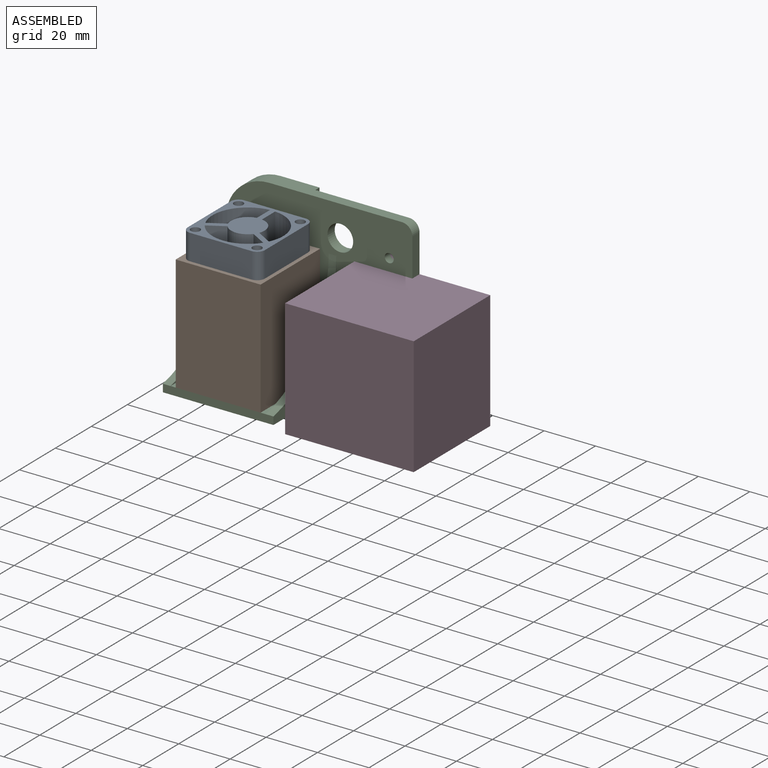
[diagram: assembled view]
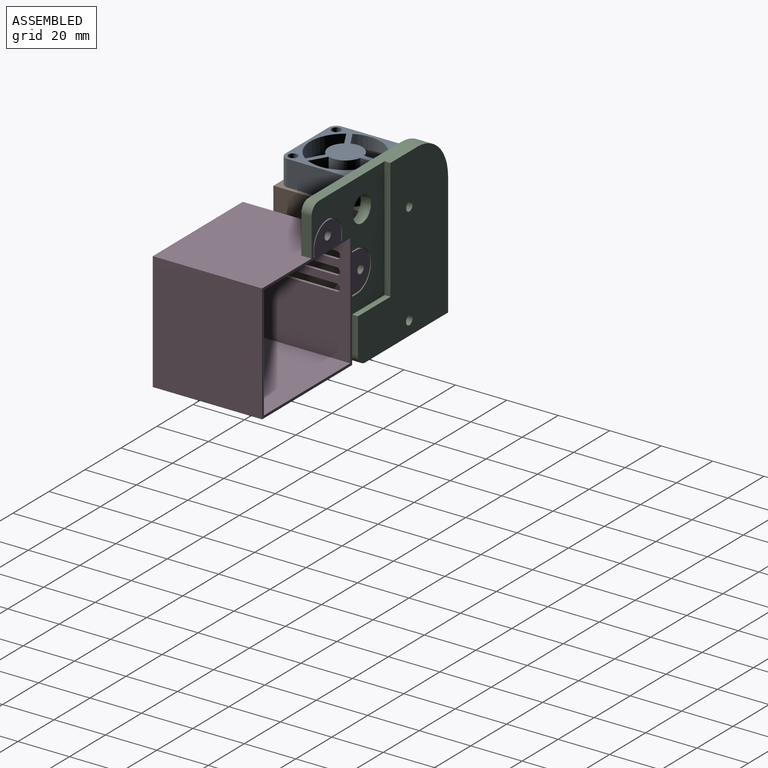
[diagram: assembled view, second angle]
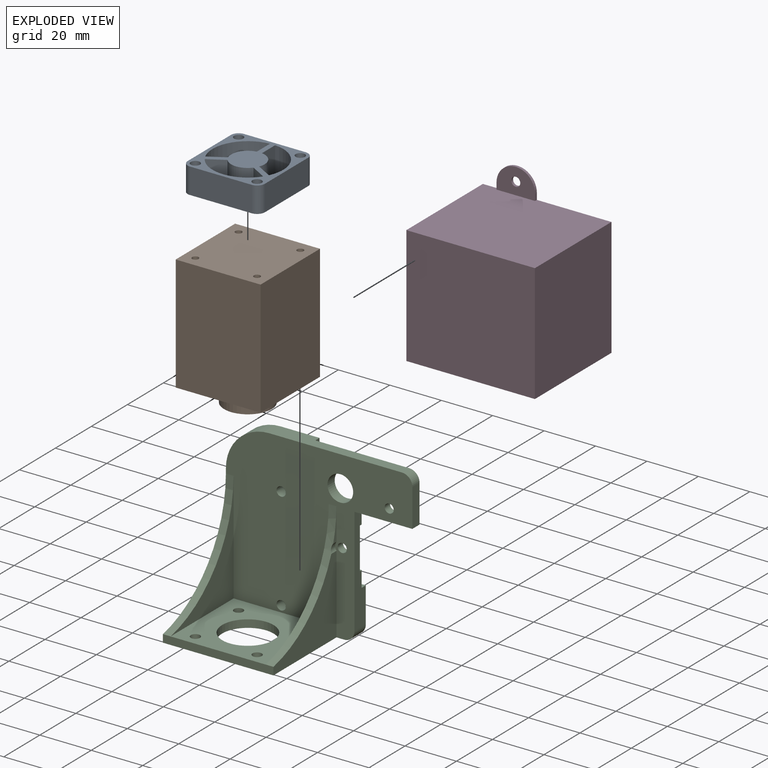
[diagram: exploded view]
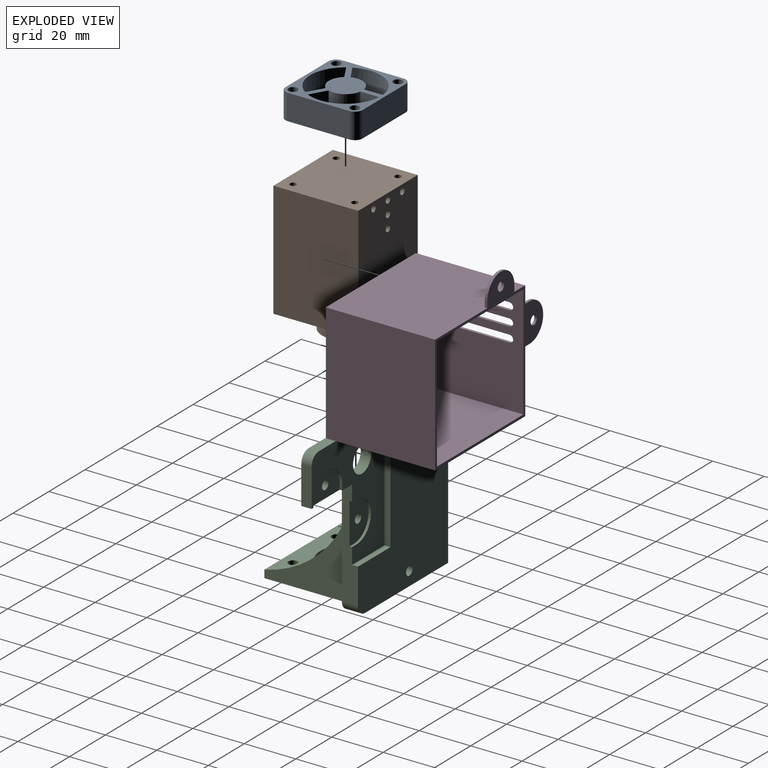
[diagram: exploded view, second angle]
ASSEMBLY  parts=4 mates=3
PART A: 26 faces, bbox 30x30x10 mm
  f0: plane 24x10mm, normal (0,-1,0), area 240mm2, adj f16,f17,f18,f21
  f1: plane 24x10mm, normal (1,0,0), area 240mm2, adj f16,f17,f18,f19
  f2: plane 24x10mm, normal (0,1,0), area 240mm2, adj f16,f17,f19,f20
  f3: plane 10x6.31mm, normal (-0.5,0.87,0), area 72.9mm2, adj f4,f12,f16,f17
  f4: cylinder r=13.75mm len=19.7mm, axis (0,0,-1), area 268mm2, adj f3,f5,f16,f17
  f5: plane 10x7.29mm, normal (-1,0,0), area 72.9mm2, adj f4,f12,f16,f17
  f6: cylinder r=13.75mm len=22.75mm, axis (0,0,-1), area 268mm2, adj f7,f13,f16,f17
  f7: plane 10x6.31mm, normal (0.5,-0.87,0), area 72.9mm2, adj f6,f8,f16,f17
  f8: cylinder r=6.5mm len=10.12mm, axis (0,0,-1), area 116.1mm2, adj f7,f13,f16,f17
  f9: cylinder r=13.75mm len=19.7mm, axis (0,0,-1), area 268mm2, adj f10,f14,f16,f17
  f10: plane 10x6.31mm, normal (0.5,0.87,0), area 72.9mm2, adj f9,f11,f16,f17
  f11: cylinder r=6.5mm len=10mm, axis (0,0,-1), area 116.1mm2, adj f10,f14,f16,f17
  f12: cylinder r=6.5mm len=10mm, axis (0,0,-1), area 116.1mm2, adj f3,f5,f16,f17
  f13: plane 10x6.31mm, normal (-0.5,-0.87,0), area 72.9mm2, adj f6,f8,f16,f17
  f14: plane 10x7.29mm, normal (1,0,0), area 72.9mm2, adj f9,f11,f16,f17
  f15: plane 24x10mm, normal (-1,0,0), area 240mm2, adj f16,f17,f20,f21
  f16: plane 30x30mm, normal (0,0,1), area 433.9mm2, adj f0,f1,f2,f3,f4,f5,f6,f7
  f17: plane 30x30mm, normal (0,0,-1), area 433.9mm2, adj f0,f1,f2,f3,f4,f5,f6,f7
  f18: cylinder r=3mm len=10mm, axis (0,0,1), area 47.1mm2, adj f0,f1,f16,f17
  f19: cylinder r=3mm len=10mm, axis (0,0,-1), area 47.1mm2, adj f1,f2,f16,f17
  f20: cylinder r=3mm len=10mm, axis (0,0,1), area 47.1mm2, adj f2,f15,f16,f17
  f21: cylinder r=3mm len=10mm, axis (0,0,-1), area 47.1mm2, adj f0,f15,f16,f17
  f22: cylinder r=1.8mm len=10mm, axis (0,0,-1), area 113.1mm2, adj f16,f17
  f23: cylinder r=1.8mm len=10mm, axis (0,0,-1), area 113.1mm2, adj f16,f17
  f24: cylinder r=1.8mm len=10mm, axis (0,0,-1), area 113.1mm2, adj f16,f17
  f25: cylinder r=1.8mm len=10mm, axis (0,0,-1), area 113.1mm2, adj f16,f17
PART B: 30 faces, bbox 33x33x52 mm
  f0: plane 45x33mm, normal (0,-1,0), area 1485mm2, adj f1,f3,f4,f5
  f1: plane 45x33mm, normal (1,0,0), area 1485mm2, adj f0,f2,f4,f5
  f2: plane 45x33mm, normal (0,1,0), area 1445.7mm2, adj f1,f3,f4,f5,f11,f13,f15,f17
  f3: plane 45x33mm, normal (-1,0,0), area 1485mm2, adj f0,f2,f4,f5
  f4: plane 33x33mm, normal (0,0,1), area 1069.4mm2, adj f0,f1,f2,f3,f26,f27,f28,f29
  f5: plane 33x33mm, normal (0,0,-1), area 800.6mm2, adj f0,f1,f2,f3,f7,f26,f27,f28
  f6: cylinder r=2.75mm len=7mm, axis (0,0,1), area 121mm2, adj f8,f9
  f7: cylinder r=9.25mm len=18.5mm, axis (0,0,1), area 406.8mm2, adj f5,f8
  f8: plane 18.5x18.5mm, normal (0,0,-1), area 245mm2, adj f6,f7
  f9: plane 5.5x5.5mm, normal (0,0,-1), area 23.8mm2, adj f6
  f10: cone r=0mm half-angle=59deg, axis (0,1,0), area 5.7mm2, adj f11
  f11: cylinder r=1.25mm len=6.75mm, axis (0,1,0), area 53mm2, adj f2,f10
  f12: cone r=0mm half-angle=59deg, axis (0,1,0), area 5.7mm2, adj f13
  f13: cylinder r=1.25mm len=6.75mm, axis (0,1,0), area 53mm2, adj f2,f12
  f14: cone r=0mm half-angle=59deg, axis (0,1,0), area 5.7mm2, adj f15
  f15: cylinder r=1.25mm len=6.75mm, axis (0,1,0), area 53mm2, adj f2,f14
  f16: cone r=0mm half-angle=59deg, axis (0,1,0), area 5.7mm2, adj f17
  f17: cylinder r=1.25mm len=6.75mm, axis (0,1,0), area 53mm2, adj f2,f16
  f18: cone r=0mm half-angle=59deg, axis (0,1,0), area 5.7mm2, adj f19
  f19: cylinder r=1.25mm len=6.75mm, axis (0,1,0), area 53mm2, adj f2,f18
  f20: cone r=0mm half-angle=59deg, axis (0,1,0), area 5.7mm2, adj f21
  f21: cylinder r=1.25mm len=6.75mm, axis (0,1,0), area 53mm2, adj f2,f20
  f22: cone r=0mm half-angle=59deg, axis (0,1,0), area 5.7mm2, adj f23
  f23: cylinder r=1.25mm len=6.75mm, axis (0,1,0), area 53mm2, adj f2,f22
  f24: cone r=0mm half-angle=59deg, axis (0,1,0), area 5.7mm2, adj f25
  f25: cylinder r=1.25mm len=6.75mm, axis (0,1,0), area 53mm2, adj f2,f24
  f26: cylinder r=1.25mm len=45mm, axis (0,0,-1), area 353.4mm2, adj f4,f5
  f27: cylinder r=1.25mm len=45mm, axis (0,0,-1), area 353.4mm2, adj f4,f5
  f28: cylinder r=1.25mm len=45mm, axis (0,0,-1), area 353.4mm2, adj f4,f5
  f29: cylinder r=1.25mm len=45mm, axis (0,0,-1), area 353.4mm2, adj f4,f5
PART C: 41 faces, bbox 72.5x41.3x64.8 mm
  f0: plane 12.49x1.81mm, normal (1,0,0), area 7.5mm2, adj f1,f2,f40
  f1: cylinder r=44mm len=43.07mm, axis (1,0,0), area 179mm2, adj f0,f2,f25,f26,f27,f40
  f2: plane 72.5x64.75mm, normal (0,-1,0), area 3086.9mm2, adj f0,f1,f3,f4,f7,f8,f11,f12
  f3: plane 43.07x35mm, normal (1,0,0), area 380.1mm2, adj f2,f28,f30
  f4: plane 42x6.3mm, normal (1,0,0), area 183.6mm2, adj f2,f5,f9,f10,f14,f16,f17,f19
  f5: plane 47x40.5mm, normal (0,1,0), area 904.8mm2, adj f4,f6,f7,f9,f11,f13,f14,f16
  f6: plane 47x2.3mm, normal (1,0,0), area 108.1mm2, adj f5,f7,f9,f10
  f7: plane 51.63x6.3mm, normal (0,0,1), area 241.3mm2, adj f2,f5,f6,f10,f37,f39
  f8: plane 46x41.3mm, normal (0,0,-1), area 1439.9mm2, adj f2,f10,f24,f25,f26,f29,f31,f32
  f9: plane 18x2.3mm, normal (0,0,1), area 41.4mm2, adj f4,f5,f6,f10
  f10: plane 64.75x50mm, normal (0,1,0), area 2306.6mm2, adj f4,f6,f7,f8,f9,f24,f35,f36
  f11: plane 14.75x4mm, normal (1,0,0), area 59mm2, adj f2,f5,f14,f37
  f12: cylinder r=1.75mm len=3.5mm, axis (0,1,0), area 33mm2, adj f2,f23
  f13: cylinder r=5mm len=10mm, axis (0,1,0), area 125.7mm2, adj f2,f5
  f14: plane 22.5x4mm, normal (0,0,-1), area 74mm2, adj f2,f4,f5,f11,f20,f21,f23
  f15: cylinder r=1.75mm len=3.5mm, axis (0,1,0), area 33mm2, adj f2,f19
  f16: plane 2.5x1mm, normal (0,0,1), area 2.5mm2, adj f4,f5,f18,f19
  f17: plane 2.5x1mm, normal (0,0,-1), area 2.5mm2, adj f4,f5,f18,f19
  f18: cylinder r=8mm len=16mm, axis (0,1,0), area 25.1mm2, adj f5,f16,f17,f19
  f19: plane 16x10.5mm, normal (0,1,0), area 130.9mm2, adj f4,f15,f16,f17,f18
  f20: plane 2.5x1mm, normal (1,0,0), area 2.5mm2, adj f5,f14,f22,f23
  f21: plane 2.5x1mm, normal (-1,0,0), area 2.5mm2, adj f5,f14,f22,f23
  f22: cylinder r=8mm len=16mm, axis (0,1,0), area 25.1mm2, adj f5,f20,f21,f23
  f23: plane 16x10.5mm, normal (0,1,0), area 130.9mm2, adj f12,f14,f20,f21,f22
  f24: plane 47.88x41.3mm, normal (-1,0,0), area 786.7mm2, adj f2,f8,f10,f25,f28,f39
  f25: plane 43x3mm, normal (0,-1,0), area 129mm2, adj f1,f8,f24,f26,f28,f30
  f26: plane 35x30.42mm, normal (1,0,0), area 470.3mm2, adj f1,f2,f8,f25,f40
  f27: plane 43.07x35mm, normal (-1,0,0), area 380.1mm2, adj f1,f2,f30
  f28: cylinder r=44mm len=43.07mm, axis (1,0,0), area 180.2mm2, adj f2,f3,f24,f25
  f29: cylinder r=10mm len=20mm, axis (0,0,-1), area 188.5mm2, adj f8,f30
  f30: plane 37x35mm, normal (0,0,1), area 940.1mm2, adj f2,f3,f25,f27,f29,f31,f32,f33
  f31: cylinder r=1.8mm len=3.6mm, axis (0,0,-1), area 33.9mm2, adj f8,f30
  f32: cylinder r=1.8mm len=3.6mm, axis (0,0,-1), area 33.9mm2, adj f8,f30
  f33: cylinder r=1.8mm len=3.6mm, axis (0,0,-1), area 33.9mm2, adj f8,f30
  f34: cylinder r=1.8mm len=3.6mm, axis (0,0,-1), area 33.9mm2, adj f8,f30
  f35: cylinder r=1.8mm len=6.3mm, axis (0,1,0), area 71.3mm2, adj f2,f10
  f36: cylinder r=1.8mm len=6.3mm, axis (0,1,0), area 71.3mm2, adj f2,f10
  f37: cylinder r=4mm len=4mm, axis (0,-1,0), area 25.1mm2, adj f2,f5,f7,f11
  f38: cylinder r=4mm len=6.3mm, axis (0,-1,0), area 39.6mm2, adj f2,f4,f8,f10
  f39: cylinder r=16.88mm len=16.88mm, axis (0,-1,0), area 167mm2, adj f2,f7,f10,f24
  f40: cylinder r=2.75mm len=3.16mm, axis (0,1,0), area 7.8mm2, adj f0,f1,f2,f26
PART D: 33 faces, bbox 60x42.5x56 mm
  f0: plane 46x42.5mm, normal (-1,0,0), area 1735mm2, adj f1,f3,f4,f5,f11,f12,f15,f21
  f1: plane 50x42.5mm, normal (0,0,-1), area 2125mm2, adj f0,f2,f4,f5
  f2: plane 46x42.5mm, normal (1,0,0), area 1955mm2, adj f1,f3,f4,f5
  f3: plane 50x42.5mm, normal (0,0,1), area 2110mm2, adj f0,f2,f4,f5,f7,f9,f10
  f4: plane 50x46mm, normal (0,-1,0), area 2300mm2, adj f0,f1,f2,f3
  f5: plane 60x56mm, normal (0,1,0), area 420.5mm2, adj f0,f1,f2,f3,f6,f7,f8,f9
  f6: cylinder r=7.5mm len=15mm, axis (0,1,0), area 23.6mm2, adj f5,f7,f9,f10
  f7: plane 2.5x1mm, normal (-1,0,0), area 2.5mm2, adj f3,f5,f6,f10
  f8: cylinder r=1.75mm len=3.5mm, axis (0,1,0), area 11mm2, adj f5,f10
  f9: plane 2.5x1mm, normal (1,0,0), area 2.5mm2, adj f3,f5,f6,f10
  f10: plane 15x10mm, normal (0,-1,0), area 116.2mm2, adj f3,f6,f7,f8,f9
  f11: plane 2.5x1mm, normal (0,0,-1), area 2.5mm2, adj f0,f5,f13,f15
  f12: plane 2.5x1mm, normal (0,0,1), area 2.5mm2, adj f0,f5,f13,f15
  f13: cylinder r=7.5mm len=15mm, axis (0,1,0), area 23.6mm2, adj f5,f11,f12,f15
  f14: cylinder r=1.75mm len=3.5mm, axis (0,1,0), area 11mm2, adj f5,f15
  f15: plane 15x10mm, normal (0,-1,0), area 116.2mm2, adj f0,f11,f12,f13,f14
  f16: plane 44x41.5mm, normal (1,0,0), area 1621mm2, adj f5,f17,f19,f20,f21,f22,f23,f24
  f17: plane 48x41.5mm, normal (0,0,1), area 1992mm2, adj f5,f16,f18,f20
  f18: plane 44x41.5mm, normal (-1,0,0), area 1826mm2, adj f5,f17,f19,f20
  f19: plane 48x41.5mm, normal (0,0,-1), area 1992mm2, adj f5,f16,f18,f20
  f20: plane 48x44mm, normal (0,1,0), area 2112mm2, adj f16,f17,f18,f19
  f21: cylinder r=1.4mm len=2.8mm, axis (-1,0,0), area 4.4mm2, adj f0,f16,f22,f23
  f22: plane 22.2x1mm, normal (0,0,1), area 22.2mm2, adj f0,f16,f21,f24
  f23: plane 22.2x1mm, normal (0,0,-1), area 22.2mm2, adj f0,f16,f21,f24
  f24: cylinder r=1.4mm len=2.8mm, axis (-1,0,0), area 4.4mm2, adj f0,f16,f22,f23
  f25: cylinder r=1.4mm len=2.8mm, axis (-1,0,0), area 4.4mm2, adj f0,f16,f26,f27
  f26: plane 22.2x1mm, normal (0,0,1), area 22.2mm2, adj f0,f16,f25,f28
  f27: plane 22.2x1mm, normal (0,0,-1), area 22.2mm2, adj f0,f16,f25,f28
  f28: cylinder r=1.4mm len=2.8mm, axis (-1,0,0), area 4.4mm2, adj f0,f16,f26,f27
  f29: cylinder r=1.4mm len=2.8mm, axis (-1,0,0), area 4.4mm2, adj f0,f16,f30,f31
  f30: plane 22.2x1mm, normal (0,0,1), area 22.2mm2, adj f0,f16,f29,f32
  f31: plane 22.2x1mm, normal (0,0,-1), area 22.2mm2, adj f0,f16,f29,f32
  f32: cylinder r=1.4mm len=2.8mm, axis (-1,0,0), area 4.4mm2, adj f0,f16,f30,f31
PLACE A t=(-3.94,-27.4,3.41)mm
PLACE B t=(-3.94,-27.4,-41.59)mm
PLACE C t=(24.56,-4.9,1.41)mm
PLACE D t=(24.56,-4.9,1.41)mm
MATE fastened C.f15 <-> D.f14  axis (0,1,0) through (19.81,-5.9,-12.59)mm
MATE fastened A.f20 <-> B.f29  axis (0,0,-1) through (-15.94,-15.4,3.41)mm
MATE fastened C.f29 <-> B.f6  axis (0,0,1) through (-3.94,-27.4,-41.59)mm
